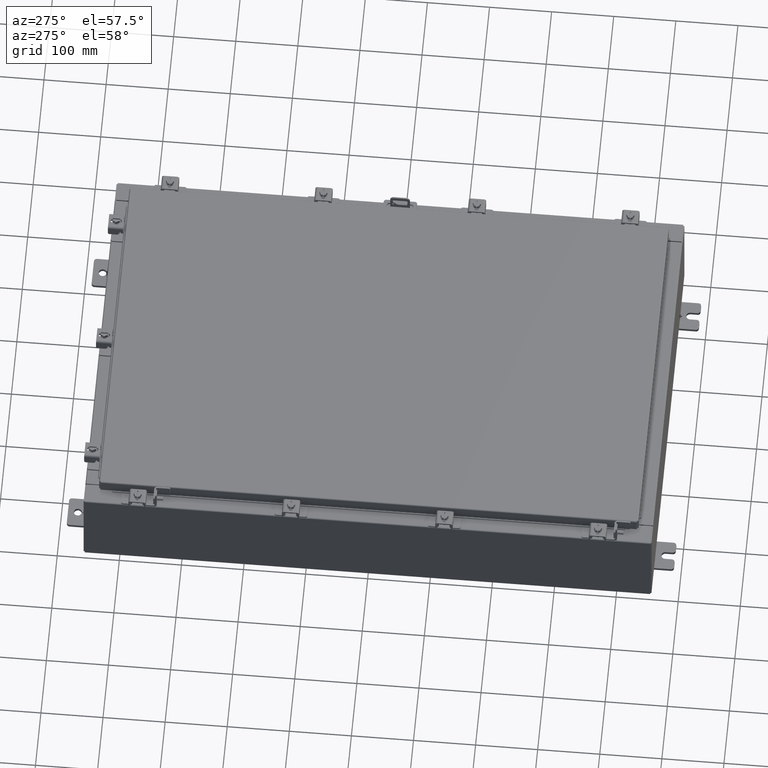
[diagram: clean part render]
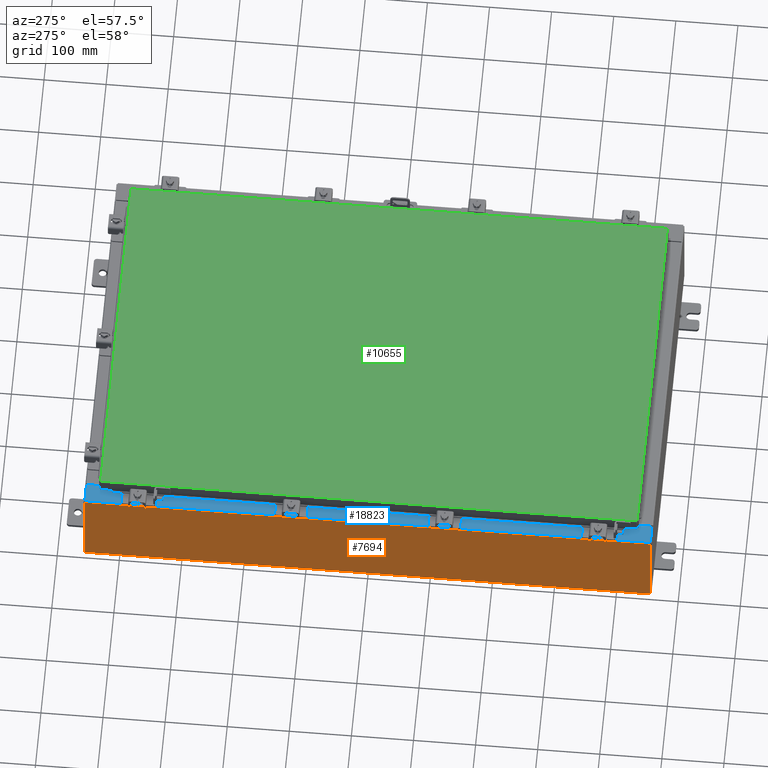
[diagram: same view with three faces highlighted in distinct colors, each labeled with its STEP entity id]
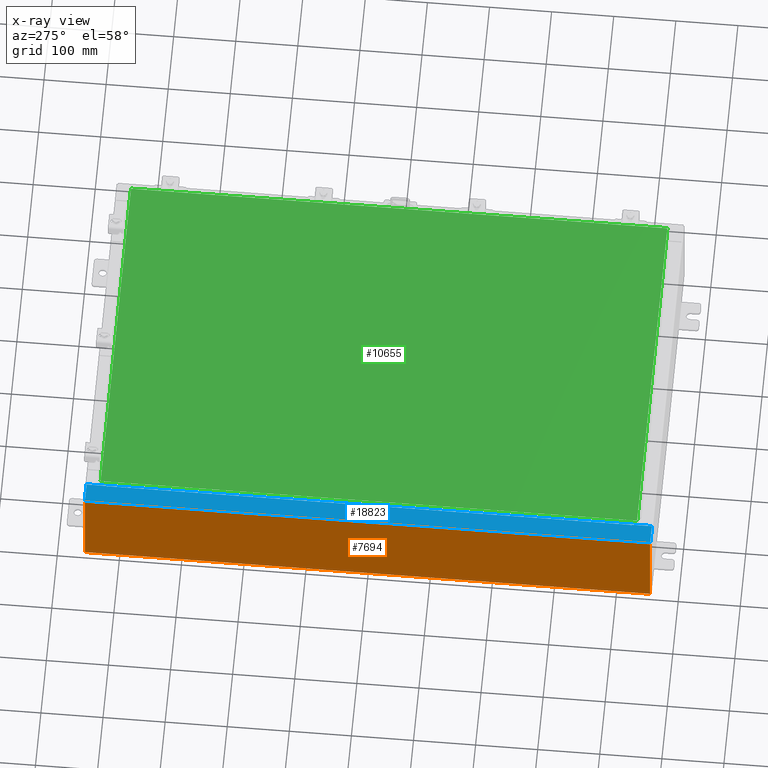
[diagram: x-ray of the same camera — body ghosted, the three highlighted faces saturated]
A machine part, auxiliary view with three faces highlighted in distinct colors.
The next image is the same camera in x-ray (body ghosted, the three faces saturated) — at least one of them is partly hidden behind the body in this view.
Their STEP definitions:

[orange] entity #7694 — the highlighted planar face has unit normal (1, 0, 0).
#508 = VECTOR ( 'NONE', #22916, 39.37007874015748100 ) ;
#2284 = ORIENTED_EDGE ( 'NONE', *, *, #16508, .T. ) ;
#2408 = CARTESIAN_POINT ( 'NONE',  ( -12.00000000000000200, 17.92529999999999600, 0.01299999999999985900 ) ) ;
#2746 = CARTESIAN_POINT ( 'NONE',  ( -12.00000000000002100, -17.92530000000000400, 5.837599999999999200 ) ) ;
#3560 = EDGE_CURVE ( 'NONE', #13597, #14431, #8430, .T. ) ;
#4139 = LINE ( 'NONE', #4731, #18989 ) ;
#4731 = CARTESIAN_POINT ( 'NONE',  ( -12.00000000000000200, -17.92530000000000400, -4.009536492811464800E-014 ) ) ;
#5385 = CARTESIAN_POINT ( 'NONE',  ( -12.00000000000000200, 0.0000000000000000000, -4.009536492811464800E-014 ) ) ;
#6185 = DIRECTION ( 'NONE',  ( -0.0000000000000000000, 1.000000000000000000, -0.0000000000000000000 ) ) ;
#7188 = DIRECTION ( 'NONE',  ( 1.000000000000000000, 0.0000000000000000000, 3.319545939341922800E-015 ) ) ;
#7295 = EDGE_CURVE ( 'NONE', #16102, #8563, #14563, .T. ) ;
#7694 = ADVANCED_FACE ( 'NONE', ( #11474 ), #16095, .F. ) ;
#8430 = LINE ( 'NONE', #19470, #8996 ) ;
#8456 = AXIS2_PLACEMENT_3D ( 'NONE', #5385, #7188, #19703 ) ;
#8563 = VERTEX_POINT ( 'NONE', #2408 ) ;
#8628 = CARTESIAN_POINT ( 'NONE',  ( -12.00000000000000200, 17.92529999999999600, -4.009536492811464800E-014 ) ) ;
#8996 = VECTOR ( 'NONE', #20693, 39.37007874015748100 ) ;
#9822 = VECTOR ( 'NONE', #6185, 39.37007874015748100 ) ;
#10143 = LINE ( 'NONE', #8628, #508 ) ;
#11474 = FACE_OUTER_BOUND ( 'NONE', #20151, .T. ) ;
#13597 = VERTEX_POINT ( 'NONE', #2746 ) ;
#14431 = VERTEX_POINT ( 'NONE', #17923 ) ;
#14563 = LINE ( 'NONE', #15099, #9822 ) ;
#15099 = CARTESIAN_POINT ( 'NONE',  ( -12.00000000000000200, 17.92529999999999600, 0.01299999999999986400 ) ) ;
#15381 = ORIENTED_EDGE ( 'NONE', *, *, #7295, .F. ) ;
#16095 = PLANE ( 'NONE',  #8456 ) ;
#16102 = VERTEX_POINT ( 'NONE', #21254 ) ;
#16508 = EDGE_CURVE ( 'NONE', #16102, #13597, #4139, .T. ) ;
#17256 = DIRECTION ( 'NONE',  ( -3.319545939341922800E-015, 0.0000000000000000000, 1.000000000000000000 ) ) ;
#17923 = CARTESIAN_POINT ( 'NONE',  ( -12.00000000000002100, 17.92529999999999600, 5.837599999999999200 ) ) ;
#18989 = VECTOR ( 'NONE', #17256, 39.37007874015748100 ) ;
#18991 = ORIENTED_EDGE ( 'NONE', *, *, #3560, .T. ) ;
#19356 = EDGE_CURVE ( 'NONE', #14431, #8563, #10143, .T. ) ;
#19470 = CARTESIAN_POINT ( 'NONE',  ( -12.00000000000002100, -17.92530000000000400, 5.837599999999999200 ) ) ;
#19703 = DIRECTION ( 'NONE',  ( 3.319545939341922800E-015, 0.0000000000000000000, -1.000000000000000000 ) ) ;
#20151 = EDGE_LOOP ( 'NONE', ( #18991, #20757, #15381, #2284 ) ) ;
#20693 = DIRECTION ( 'NONE',  ( 0.0000000000000000000, 1.000000000000000000, 0.0000000000000000000 ) ) ;
#20757 = ORIENTED_EDGE ( 'NONE', *, *, #19356, .T. ) ;
#21254 = CARTESIAN_POINT ( 'NONE',  ( -12.00000000000000200, -17.92530000000000400, 0.01299999999999986400 ) ) ;
#22916 = DIRECTION ( 'NONE',  ( 3.319545939341922800E-015, 0.0000000000000000000, -1.000000000000000000 ) ) ;

[blue] entity #18823 — the highlighted planar face has unit normal (0, 0, -1).
#202 = ORIENTED_EDGE ( 'NONE', *, *, #12569, .F. ) ;
#227 = VERTEX_POINT ( 'NONE', #8226 ) ;
#539 = AXIS2_PLACEMENT_3D ( 'NONE', #18077, #1994, #14570 ) ;
#740 = CARTESIAN_POINT ( 'NONE',  ( -4.252457061909017700E-014, 17.92529999999999600, 5.925300000000084400 ) ) ;
#870 = CARTESIAN_POINT ( 'NONE',  ( -10.69970000000002100, -16.63110000000000700, 5.925300000000008000 ) ) ;
#882 = CARTESIAN_POINT ( 'NONE',  ( -10.69970000000002100, 17.92529999999999600, 5.925300000000008000 ) ) ;
#1154 = VERTEX_POINT ( 'NONE', #6388 ) ;
#1178 = LINE ( 'NONE', #14408, #5436 ) ;
#1265 = CARTESIAN_POINT ( 'NONE',  ( -11.91230000000002000, -17.92530000000000400, 5.925299999999999100 ) ) ;
#1444 = VECTOR ( 'NONE', #10052, 39.37007874015748100 ) ;
#1520 = EDGE_CURVE ( 'NONE', #15014, #1680, #15771, .T. ) ;
#1551 = DIRECTION ( 'NONE',  ( -2.076025640262915200E-031, 1.000000000000000000, -1.480779759829717100E-045 ) ) ;
#1608 = DIRECTION ( 'NONE',  ( 1.000000000000000000, 0.0000000000000000000, 0.0000000000000000000 ) ) ;
#1680 = VERTEX_POINT ( 'NONE', #870 ) ;
#1824 = CARTESIAN_POINT ( 'NONE',  ( -11.91230000000002000, 17.92529999999999600, 5.925299999999999100 ) ) ;
#1994 = DIRECTION ( 'NONE',  ( 7.132762385546384700E-015, 0.0000000000000000000, -1.000000000000000000 ) ) ;
#2197 = ORIENTED_EDGE ( 'NONE', *, *, #17195, .F. ) ;
#2329 = FACE_OUTER_BOUND ( 'NONE', #13430, .T. ) ;
#2396 = LINE ( 'NONE', #18781, #11424 ) ;
#2470 = CARTESIAN_POINT ( 'NONE',  ( -10.75005000000002100, -16.61242500000000200, 5.925300000000009800 ) ) ;
#2561 = DIRECTION ( 'NONE',  ( -1.000000000000000000, -2.717614574405841100E-032, -7.132762385546384700E-015 ) ) ;
#2808 = EDGE_CURVE ( 'NONE', #10801, #11141, #22445, .T. ) ;
#3338 = DIRECTION ( 'NONE',  ( -0.0000000000000000000, 1.000000000000000000, -0.0000000000000000000 ) ) ;
#3661 = VERTEX_POINT ( 'NONE', #10169 ) ;
#4204 = DIRECTION ( 'NONE',  ( -1.000000000000000000, 0.0000000000000000000, 0.0000000000000000000 ) ) ;
#4311 = DIRECTION ( 'NONE',  ( 1.000000000000000000, 0.0000000000000000000, 0.0000000000000000000 ) ) ;
#4317 = EDGE_CURVE ( 'NONE', #22925, #11141, #1178, .T. ) ;
#4482 = VERTEX_POINT ( 'NONE', #6727 ) ;
#5015 = ORIENTED_EDGE ( 'NONE', *, *, #23205, .F. ) ;
#5436 = VECTOR ( 'NONE', #3338, 39.37007874015748100 ) ;
#5563 = EDGE_CURVE ( 'NONE', #22925, #15014, #8492, .T. ) ;
#5847 = VECTOR ( 'NONE', #11663, 39.37007874015748100 ) ;
#6033 = CARTESIAN_POINT ( 'NONE',  ( -10.71270000000002100, -16.59375000000000400, 5.925300000000009800 ) ) ;
#6147 = EDGE_CURVE ( 'NONE', #3661, #10801, #16272, .T. ) ;
#6388 = CARTESIAN_POINT ( 'NONE',  ( -10.75005000000002100, -16.63110000000000400, 5.925300000000008000 ) ) ;
#6465 = ORIENTED_EDGE ( 'NONE', *, *, #5563, .T. ) ;
#6481 = VERTEX_POINT ( 'NONE', #16599 ) ;
#6727 = CARTESIAN_POINT ( 'NONE',  ( -10.71270000000002100, -16.59375000000000400, 5.925300000000009800 ) ) ;
#6770 = VECTOR ( 'NONE', #1551, 39.37007874015748100 ) ;
#6906 = VERTEX_POINT ( 'NONE', #17614 ) ;
#8072 = ORIENTED_EDGE ( 'NONE', *, *, #12471, .F. ) ;
#8226 = CARTESIAN_POINT ( 'NONE',  ( -10.75005000000002100, 16.59375000000000000, 5.925300000000008000 ) ) ;
#8492 = LINE ( 'NONE', #21875, #13243 ) ;
#10052 = DIRECTION ( 'NONE',  ( -2.076025640262915200E-031, 1.000000000000000000, -1.480779759829717100E-045 ) ) ;
#10169 = CARTESIAN_POINT ( 'NONE',  ( -10.69970000000002100, 16.63110000000000000, 5.925300000000008000 ) ) ;
#10515 = VECTOR ( 'NONE', #19737, 39.37007874015748100 ) ;
#10694 = ORIENTED_EDGE ( 'NONE', *, *, #1520, .T. ) ;
#10801 = VERTEX_POINT ( 'NONE', #882 ) ;
#11141 = VERTEX_POINT ( 'NONE', #1824 ) ;
#11417 = VERTEX_POINT ( 'NONE', #20622 ) ;
#11424 = VECTOR ( 'NONE', #11712, 39.37007874015748100 ) ;
#11452 = CARTESIAN_POINT ( 'NONE',  ( -10.69970000000002100, -2.221285154312107200E-030, 5.925300000000008000 ) ) ;
#11663 = DIRECTION ( 'NONE',  ( -0.0000000000000000000, -1.000000000000000000, -0.0000000000000000000 ) ) ;
#11682 = LINE ( 'NONE', #16398, #15846 ) ;
#11712 = DIRECTION ( 'NONE',  ( 1.000000000000000000, 0.0000000000000000000, 0.0000000000000000000 ) ) ;
#11833 = VECTOR ( 'NONE', #2561, 39.37007874015748100 ) ;
#12411 = DIRECTION ( 'NONE',  ( -7.132762385546384700E-015, -0.0000000000000000000, 1.000000000000000000 ) ) ;
#12471 = EDGE_CURVE ( 'NONE', #11417, #227, #16354, .T. ) ;
#12569 = EDGE_CURVE ( 'NONE', #3661, #11417, #15245, .T. ) ;
#12632 = CARTESIAN_POINT ( 'NONE',  ( -10.69970000000002100, 16.63110000000000000, 5.925300000000008900 ) ) ;
#12783 = PLANE ( 'NONE',  #539 ) ;
#13243 = VECTOR ( 'NONE', #19237, 39.37007874015748100 ) ;
#13430 = EDGE_LOOP ( 'NONE', ( #202, #21261, #20005, #16614, #6465, #10694, #5015, #22302, #22548, #19194, #2197, #8072 ) ) ;
#14408 = CARTESIAN_POINT ( 'NONE',  ( -11.91230000000002000, 17.92529999999999600, 5.925299999999999100 ) ) ;
#14570 = DIRECTION ( 'NONE',  ( -1.000000000000000000, 0.0000000000000000000, -7.132762385546384700E-015 ) ) ;
#15014 = VERTEX_POINT ( 'NONE', #18244 ) ;
#15051 = DIRECTION ( 'NONE',  ( -7.132762385546384700E-015, -0.0000000000000000000, 1.000000000000000000 ) ) ;
#15245 = LINE ( 'NONE', #12632, #10515 ) ;
#15771 = LINE ( 'NONE', #11452, #1444 ) ;
#15846 = VECTOR ( 'NONE', #18190, 39.37007874015748100 ) ;
#15865 = VECTOR ( 'NONE', #4204, 39.37007874015748100 ) ;
#16272 = LINE ( 'NONE', #21224, #6770 ) ;
#16354 = CIRCLE ( 'NONE', #22132, 0.01867499999999949400 ) ;
#16398 = CARTESIAN_POINT ( 'NONE',  ( -10.75005000000002100, -16.63110000000000400, 5.925300000000009800 ) ) ;
#16441 = EDGE_CURVE ( 'NONE', #6906, #4482, #20124, .T. ) ;
#16599 = CARTESIAN_POINT ( 'NONE',  ( -10.75005000000002100, -16.59375000000000400, 5.925300000000008000 ) ) ;
#16614 = ORIENTED_EDGE ( 'NONE', *, *, #4317, .F. ) ;
#17092 = EDGE_CURVE ( 'NONE', #6481, #1154, #17841, .T. ) ;
#17195 = EDGE_CURVE ( 'NONE', #227, #6906, #2396, .T. ) ;
#17614 = CARTESIAN_POINT ( 'NONE',  ( -10.71270000000002100, 16.59375000000000000, 5.925300000000009800 ) ) ;
#17841 = CIRCLE ( 'NONE', #18136, 0.01867499999999949400 ) ;
#18077 = CARTESIAN_POINT ( 'NONE',  ( -4.252457061909017700E-014, 0.0000000000000000000, 5.925300000000084400 ) ) ;
#18136 = AXIS2_PLACEMENT_3D ( 'NONE', #2470, #15051, #4311 ) ;
#18190 = DIRECTION ( 'NONE',  ( 1.000000000000000000, -4.340572780400098900E-014, -2.170286390200049500E-014 ) ) ;
#18244 = CARTESIAN_POINT ( 'NONE',  ( -10.69970000000002100, -17.92530000000000400, 5.925300000000008000 ) ) ;
#18781 = CARTESIAN_POINT ( 'NONE',  ( -10.75005000000002100, 16.59375000000000000, 5.925300000000009800 ) ) ;
#18823 = ADVANCED_FACE ( 'NONE', ( #2329 ), #12783, .F. ) ;
#19194 = ORIENTED_EDGE ( 'NONE', *, *, #16441, .F. ) ;
#19237 = DIRECTION ( 'NONE',  ( 1.000000000000000000, -4.379057701015054300E-047, 7.132762385546384700E-015 ) ) ;
#19737 = DIRECTION ( 'NONE',  ( -1.000000000000000000, -4.340572780400098900E-014, 2.170286390200049500E-014 ) ) ;
#20005 = ORIENTED_EDGE ( 'NONE', *, *, #2808, .T. ) ;
#20124 = LINE ( 'NONE', #20539, #5847 ) ;
#20539 = CARTESIAN_POINT ( 'NONE',  ( -10.71270000000002100, 16.59375000000000000, 5.925300000000009800 ) ) ;
#20616 = LINE ( 'NONE', #6033, #15865 ) ;
#20622 = CARTESIAN_POINT ( 'NONE',  ( -10.75005000000002100, 16.63110000000000000, 5.925300000000008000 ) ) ;
#21224 = CARTESIAN_POINT ( 'NONE',  ( -10.69970000000002100, -2.221285154312107200E-030, 5.925300000000008000 ) ) ;
#21261 = ORIENTED_EDGE ( 'NONE', *, *, #6147, .T. ) ;
#21875 = CARTESIAN_POINT ( 'NONE',  ( -4.252457061909017700E-014, -17.92530000000000400, 5.925300000000084400 ) ) ;
#22132 = AXIS2_PLACEMENT_3D ( 'NONE', #23108, #12411, #1608 ) ;
#22302 = ORIENTED_EDGE ( 'NONE', *, *, #17092, .F. ) ;
#22445 = LINE ( 'NONE', #740, #11833 ) ;
#22548 = ORIENTED_EDGE ( 'NONE', *, *, #22657, .F. ) ;
#22657 = EDGE_CURVE ( 'NONE', #4482, #6481, #20616, .T. ) ;
#22925 = VERTEX_POINT ( 'NONE', #1265 ) ;
#23108 = CARTESIAN_POINT ( 'NONE',  ( -10.75005000000002100, 16.61242499999999800, 5.925300000000009800 ) ) ;
#23205 = EDGE_CURVE ( 'NONE', #1154, #1680, #11682, .T. ) ;

[green] entity #10655 — the highlighted planar face has unit normal (0, 0, -1).
#104 = CARTESIAN_POINT ( 'NONE',  ( -10.99030000000000100, -17.00630000000000000, 8.878505979408856000E-016 ) ) ;
#2230 = VECTOR ( 'NONE', #22686, 39.37007874015748100 ) ;
#2309 = DIRECTION ( 'NONE',  ( 0.0000000000000000000, 0.0000000000000000000, -1.000000000000000000 ) ) ;
#3042 = LINE ( 'NONE', #16500, #21552 ) ;
#3098 = ORIENTED_EDGE ( 'NONE', *, *, #19281, .T. ) ;
#4554 = DIRECTION ( 'NONE',  ( 0.0000000000000000000, -1.000000000000000000, 0.0000000000000000000 ) ) ;
#5196 = DIRECTION ( 'NONE',  ( 1.000000000000000000, -0.0000000000000000000, -0.0000000000000000000 ) ) ;
#7051 = LINE ( 'NONE', #20862, #2230 ) ;
#7171 = EDGE_CURVE ( 'NONE', #15562, #16425, #3042, .T. ) ;
#9518 = PLANE ( 'NONE',  #10000 ) ;
#10000 = AXIS2_PLACEMENT_3D ( 'NONE', #13098, #2309, #14883 ) ;
#10345 = EDGE_CURVE ( 'NONE', #19999, #15562, #21135, .T. ) ;
#10655 = ADVANCED_FACE ( 'NONE', ( #18609 ), #9518, .F. ) ;
#10975 = CARTESIAN_POINT ( 'NONE',  ( 10.99029999999999800, -17.00630000000000300, -1.297627796990525000E-015 ) ) ;
#12221 = ORIENTED_EDGE ( 'NONE', *, *, #10345, .T. ) ;
#12323 = VERTEX_POINT ( 'NONE', #16996 ) ;
#13098 = CARTESIAN_POINT ( 'NONE',  ( 0.0000000000000000000, 0.0000000000000000000, 0.0000000000000000000 ) ) ;
#13328 = LINE ( 'NONE', #15282, #18069 ) ;
#14883 = DIRECTION ( 'NONE',  ( -1.000000000000000000, 0.0000000000000000000, -0.0000000000000000000 ) ) ;
#15282 = CARTESIAN_POINT ( 'NONE',  ( -10.99030000000000500, 17.00630000000000000, -2.390366994456230300E-015 ) ) ;
#15562 = VERTEX_POINT ( 'NONE', #10975 ) ;
#15901 = CARTESIAN_POINT ( 'NONE',  ( -10.99030000000000100, -17.00630000000000000, 8.878505979408856000E-016 ) ) ;
#16075 = EDGE_LOOP ( 'NONE', ( #12221, #20938, #3098, #16181 ) ) ;
#16181 = ORIENTED_EDGE ( 'NONE', *, *, #18396, .T. ) ;
#16425 = VERTEX_POINT ( 'NONE', #16939 ) ;
#16500 = CARTESIAN_POINT ( 'NONE',  ( 10.99029999999999800, -17.00630000000000300, -1.297627796990525000E-015 ) ) ;
#16939 = CARTESIAN_POINT ( 'NONE',  ( 10.99029999999999800, 17.00630000000000000, -2.048885995248197400E-016 ) ) ;
#16996 = CARTESIAN_POINT ( 'NONE',  ( -10.99030000000000500, 17.00630000000000000, -2.390366994456230300E-015 ) ) ;
#18069 = VECTOR ( 'NONE', #4554, 39.37007874015748100 ) ;
#18304 = DIRECTION ( 'NONE',  ( 0.0000000000000000000, 1.000000000000000000, 0.0000000000000000000 ) ) ;
#18396 = EDGE_CURVE ( 'NONE', #12323, #19999, #13328, .T. ) ;
#18609 = FACE_OUTER_BOUND ( 'NONE', #16075, .T. ) ;
#19281 = EDGE_CURVE ( 'NONE', #16425, #12323, #7051, .T. ) ;
#19999 = VERTEX_POINT ( 'NONE', #104 ) ;
#20046 = VECTOR ( 'NONE', #5196, 39.37007874015748100 ) ;
#20862 = CARTESIAN_POINT ( 'NONE',  ( 10.99029999999999800, 17.00630000000000000, -2.048885995248197400E-016 ) ) ;
#20938 = ORIENTED_EDGE ( 'NONE', *, *, #7171, .T. ) ;
#21135 = LINE ( 'NONE', #15901, #20046 ) ;
#21552 = VECTOR ( 'NONE', #18304, 39.37007874015748100 ) ;
#22686 = DIRECTION ( 'NONE',  ( -1.000000000000000000, -0.0000000000000000000, -0.0000000000000000000 ) ) ;